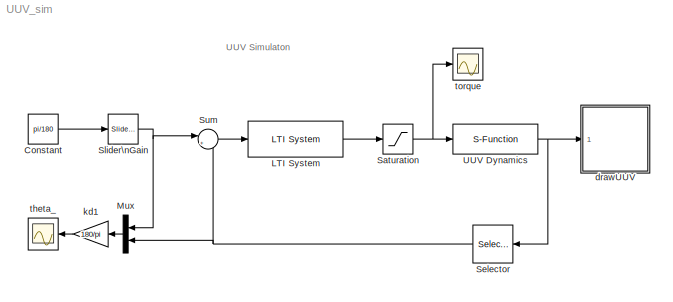
MODEL UUV_sim
KIND model
BLOCK [Constant] Constant
  SID = 42
  Value = pi/180
BLOCK [Reference] LTI System  REF=cstblocks/LTI System
  IC = []
  Ports = [1, 1]
  SID = 44
  SourceBlock = cstblocks/LTI System
  SourceType = LTI Block
  sys = C
BLOCK [Mux] Mux
  DisplayOption = bar
  Inputs = 2
  Ports = [2, 1]
  SID = 23
BLOCK [Saturate] Saturation
  InputPortMap = u0
  LowerLimit = -P.tau_max
  Ports = [1, 1]
  SID = 17
  UpperLimit = P.tau_max
BLOCK [Selector] Selector
  Indices = [1]
  InputPortWidth = 2
  Ports = [1, 1]
  SID = 43
BLOCK [Reference] Slider\nGain  REF=simulink/Math\nOperations/Slider\nGain
  Ports = [1, 1]
  SID = 41
  SourceBlock = simulink/Math\nOperations/Slider\nGain
  SourceType = Slider Gain
  gain = 26.3999
  high = 180
  low = -180
BLOCK [Sum] Sum
  IconShape = round
  InputSameDT = off
  Inputs = |+-
  OutDataTypeStr = Inherit: Inherit via internal rule
  Ports = [2, 1]
  SID = 45
  SaturateOnIntegerOverflow = off
BLOCK [S-Function] UUV Dynamics
  EnableBusSupport = off
  FunctionName = UUV_dynamics
  Parameters = P
  Ports = [1, 1]
  SID = 11
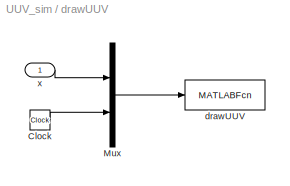
BLOCK [SubSystem] drawUUV
  Ports = [1]
  RequestExecContextInheritance = off
  SID = 4
BLOCK [Clock] drawUUV/Clock
  SID = 6
BLOCK [Mux] drawUUV/Mux
  DisplayOption = bar
  Inputs = 2
  Ports = [2, 1]
  SID = 7
BLOCK [MATLABFcn] drawUUV/drawUUV
  MATLABFcn = drawUUV(u,MajorAxis,MinorAxis,C_M)
  OutputDimensions = 0
  Ports = [1]
  SID = 8
  SampleTime = 0.1
BLOCK [Inport] drawUUV/x
  IconDisplay = Port number
  SID = 5
BLOCK [Gain] kd1
  Gain = 180/pi
  OutDataTypeStr = Inherit: Inherit via internal rule
  ParamDataTypeStr = Inherit: Inherit via internal rule
  SID = 27
  SaturateOnIntegerOverflow = off
BLOCK [Scope] theta_
  DataFormat = StructureWithTime
  Floating = off
  LimitDataPoints = off
  NumInputPorts = 1
  Ports = [1]
  SID = 22
  SampleTime = 0
  SaveName = ScopeData1
  ShowLegends = off
  YMax = 32
  YMin = 20
BLOCK [Scope] torque
  DataFormat = StructureWithTime
  Floating = off
  LimitDataPoints = off
  NumInputPorts = 1
  Ports = [1]
  SID = 16
  SampleTime = 0
  ShowLegends = off
  YMax = 1
  YMin = 5.55112e-17
ANNOTATION (root): UUV Simulaton
LINE Constant:1 -> Slider\nGain:1
LINE LTI System:1 -> Saturation:1
LINE Mux:1 -> kd1:1
NET Saturation:1 -> UUV Dynamics:1, torque:1
NET Selector:1 -> Mux:2, Sum:2
NET Slider\nGain:1 -> Mux:1, Sum:1
LINE Sum:1 -> LTI System:1
NET UUV Dynamics:1 -> Selector:1, drawUUV:1
LINE drawUUV/Clock:1 -> drawUUV/Mux:2
LINE drawUUV/Mux:1 -> drawUUV/drawUUV:1
LINE drawUUV/x:1 -> drawUUV/Mux:1
LINE kd1:1 -> theta_:1
note: NET lines group one-source signal fan-out (src -> all destinations, sorted); 1:1 wires keep LINE
